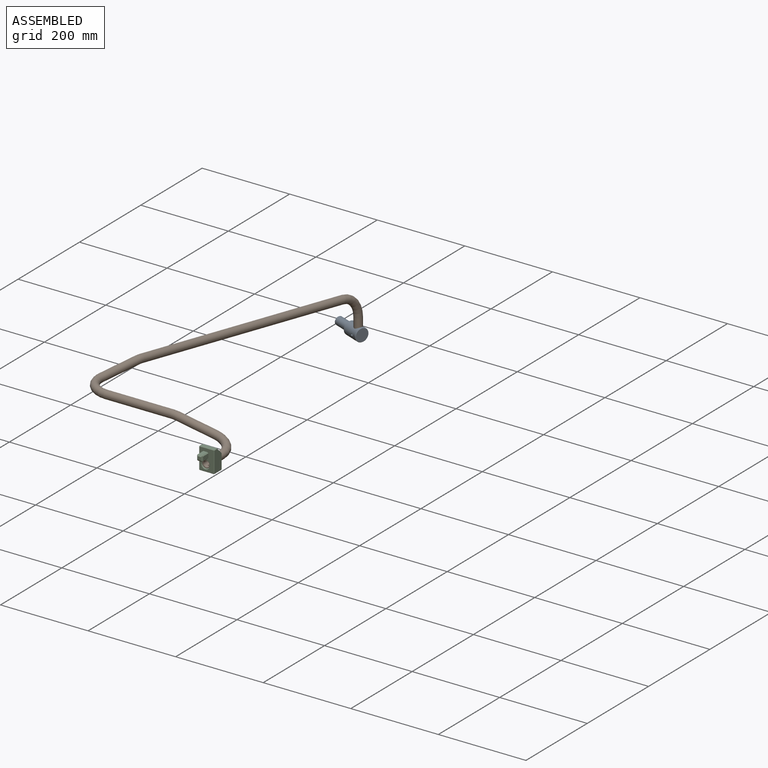
[diagram: assembled view]
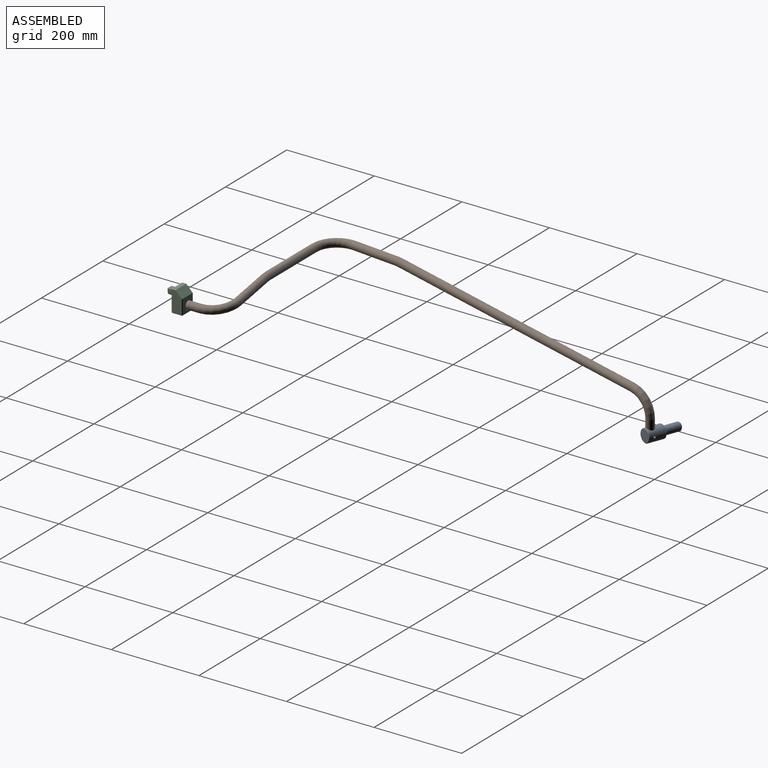
[diagram: assembled view, second angle]
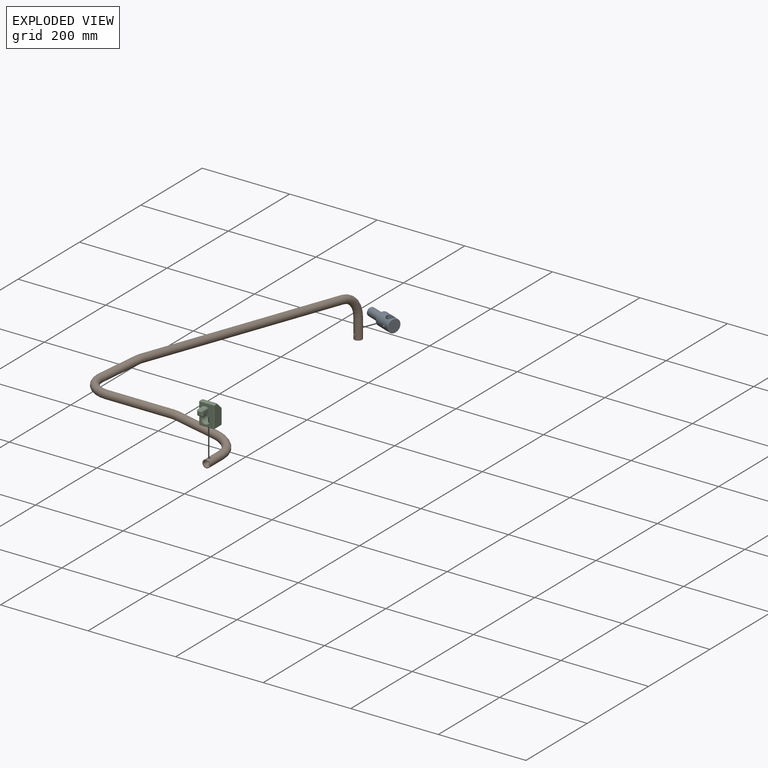
[diagram: exploded view]
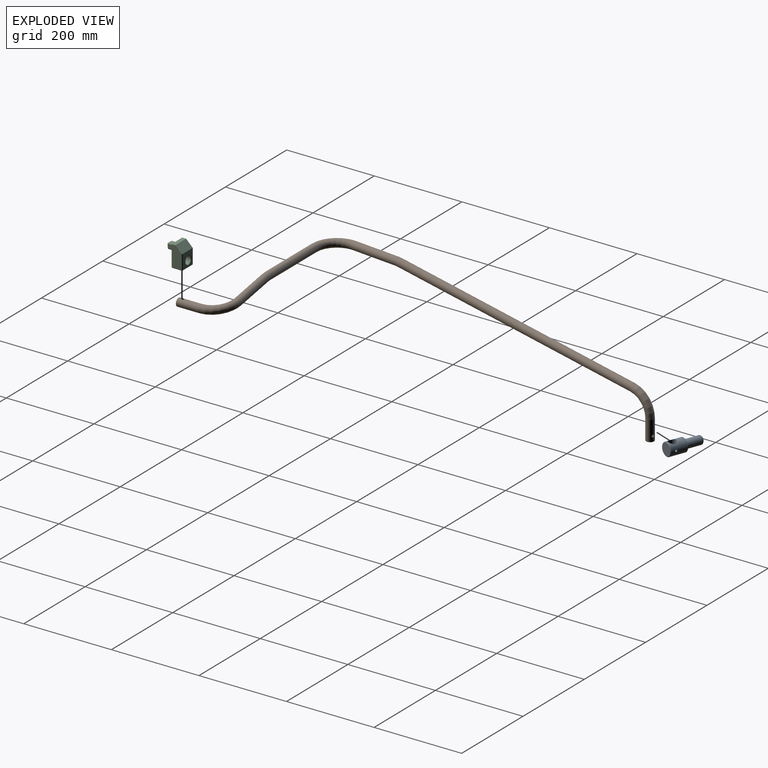
[diagram: exploded view, second angle]
ASSEMBLY  parts=3 mates=2
PART A: 13 faces, bbox 34.5x30x80 mm
  f0: cylinder r=15mm len=38mm, axis (0,0,-1), area 3006.4mm2, adj f1,f8,f9,f11,f12
  f1: cylinder r=9mm len=34.46mm, axis (0.93,-0.36,0), area 1491.9mm2, adj f0,f8,f9
  f2: plane 28x28mm, normal (0,0,-1), area 439mm2, adj f7,f12
  f3: plane 28x28mm, normal (0,0,1), area 615.8mm2, adj f11
  f4: plane 13x13mm, normal (0,0,-1), area 132.7mm2, adj f10
  f5: cylinder r=9.5mm len=34mm, axis (0,0,-1), area 2029.5mm2, adj f6,f10
  f6: plane 19x19mm, normal (0,0,1), area 106.8mm2, adj f5,f7
  f7: cylinder r=7.5mm len=15mm, axis (0,0,-1), area 141.4mm2, adj f2,f6
  f8: cylinder r=2.5mm len=7.72mm, axis (-0.36,-0.93,0), area 95.4mm2, adj f0,f1
  f9: cylinder r=2.5mm len=7.72mm, axis (-0.36,-0.93,0), area 95.4mm2, adj f0,f1
  f10: cone r=6.5mm half-angle=45deg, axis (0,0,1), area 213.3mm2, adj f4,f5
  f11: cone r=15mm half-angle=45deg, axis (0,0,-1), area 128.8mm2, adj f0,f3
  f12: cone r=14mm half-angle=45deg, axis (0,0,1), area 128.8mm2, adj f0,f2
PART B: 28 faces, bbox 377.6x899.4x186.9 mm
  f0: cylinder r=7mm len=50mm, axis (0,-1,0), area 2150.7mm2, adj f4,f23,f26,f27
  f1: cylinder r=9mm len=50mm, axis (0,-1,0), area 2779.4mm2, adj f9,f23,f26,f27
  f2: cylinder r=7mm len=45.67mm, axis (0,0,-1), area 1960mm2, adj f8,f22,f24,f25
  f3: cylinder r=9mm len=45.67mm, axis (0,0,-1), area 2534.2mm2, adj f13,f22,f24,f25
  f4: torus R=51mm, axis (0.17,0,0.98), area 3523.4mm2, adj f0,f14
  f5: torus R=51mm, axis (0,-1,0), area 391.5mm2, adj f14,f15
  f6: torus R=51mm, axis (0,0,-1), area 3758.3mm2, adj f15,f16
  f7: torus R=51mm, axis (-0.99,0.1,0), area 313.2mm2, adj f16,f17
  f8: torus R=51mm, axis (-0.99,0.1,0), area 3210.3mm2, adj f2,f17
  f9: torus R=51mm, axis (0.17,0,0.98), area 4530.1mm2, adj f1,f18
  f10: torus R=51mm, axis (0,-1,0), area 503.3mm2, adj f18,f19
  f11: torus R=51mm, axis (0,0,-1), area 4832.2mm2, adj f19,f20
  f12: torus R=51mm, axis (-0.99,0.1,0), area 402.7mm2, adj f20,f21
  f13: torus R=51mm, axis (-0.99,0.1,0), area 4127.5mm2, adj f3,f21
  f14: cylinder r=7mm len=89.59mm, axis (-0.98,0,0.17), area 3892.8mm2, adj f4,f5
  f15: cylinder r=7mm len=152.71mm, axis (-1,0,0), area 6716.6mm2, adj f5,f6
  f16: cylinder r=7mm len=105.68mm, axis (0.1,0.99,0), area 4609mm2, adj f6,f7
  f17: cylinder r=7mm len=575.71mm, axis (0.1,0.98,-0.14), area 25602.1mm2, adj f7,f8
  f18: cylinder r=9mm len=90.29mm, axis (-0.98,0,0.17), area 5005mm2, adj f9,f10
  f19: cylinder r=9mm len=152.71mm, axis (-1,0,0), area 8635.7mm2, adj f10,f11
  f20: cylinder r=9mm len=106.1mm, axis (0.1,0.99,0), area 5925.9mm2, adj f11,f12
  f21: cylinder r=9mm len=576.4mm, axis (0.1,0.98,-0.14), area 32917mm2, adj f12,f13
  f22: plane 18x18mm, normal (0,0,-1), area 100.5mm2, adj f2,f3
  f23: plane 18x18mm, normal (0,-1,0), area 100.5mm2, adj f0,f1
  f24: cylinder r=2.75mm len=6.05mm, axis (0.36,0.93,0), area 35.7mm2, adj f2,f3
  f25: cylinder r=2.75mm len=6.05mm, axis (0.36,0.93,0), area 35.7mm2, adj f2,f3
  f26: cylinder r=2.75mm len=5.5mm, axis (0,0,-1), area 35.7mm2, adj f0,f1
  f27: cylinder r=2.75mm len=5.5mm, axis (0,0,-1), area 35.7mm2, adj f0,f1
PART C: 44 faces, bbox 50x35x45 mm
  f0: plane 33x9mm, normal (-1,0,0), area 297mm2, adj f12,f26,f27,f31
  f1: plane 48x23mm, normal (0,-1,0), area 1000.1mm2, adj f18,f19,f23,f27,f28
  f2: plane 33x23mm, normal (1,0,0), area 739.4mm2, adj f13,f16,f19,f20,f43
  f3: cylinder r=9mm len=23mm, axis (0,0,-1), area 1261mm2, adj f32,f33,f42,f43
  f4: plane 48x23mm, normal (0,1,0), area 1000.1mm2, adj f16,f17,f22,f25,f26
  f5: plane 34x33mm, normal (0,0,1), area 807.8mm2, adj f12,f13,f17,f18,f32
  f6: plane 48x33mm, normal (0,0,-1), area 1095.6mm2, adj f7,f8,f9,f10,f20,f25,f28,f31
  f7: plane 17x9.5mm, normal (-1,0,0), area 161.5mm2, adj f6,f34,f38,f41
  f8: plane 17x9.5mm, normal (0,-1,0), area 161.5mm2, adj f6,f36,f38,f39
  f9: plane 17x9.5mm, normal (1,0,0), area 161.5mm2, adj f6,f37,f39,f40
  f10: plane 17x9.5mm, normal (0,1,0), area 161.5mm2, adj f6,f35,f40,f41
  f11: plane 7.5x7.5mm, normal (0,0,-1), area 56.2mm2, adj f34,f35,f36,f37
  f12: plane 33x15mm, normal (-0.71,0,0.71), area 616.7mm2, adj f0,f5,f22,f23,f42
  f13: plane 33x1mm, normal (0.71,0,0.71), area 46.7mm2, adj f2,f5,f14,f15
  f14: plane 1x1mm, normal (0.58,0.58,0.58), area 0.9mm2, adj f13,f16,f17
  f15: plane 1x1mm, normal (0.58,-0.58,0.58), area 0.9mm2, adj f13,f18,f19
  f16: plane 23x1mm, normal (0.71,0.71,0), area 32.5mm2, adj f2,f4,f14,f21
  f17: plane 34x1mm, normal (0,0.71,0.71), area 47.8mm2, adj f4,f5,f14,f22
  f18: plane 34x1mm, normal (0,-0.71,0.71), area 47.8mm2, adj f1,f5,f15,f23
  f19: plane 23x1mm, normal (0.71,-0.71,0), area 32.5mm2, adj f1,f2,f15,f24
  f20: plane 33x1mm, normal (0.71,0,-0.71), area 46.7mm2, adj f2,f6,f21,f24
  f21: plane 1x1mm, normal (0.58,0.58,-0.58), area 0.9mm2, adj f16,f20,f25
  f22: plane 15.41x15.41mm, normal (-0.5,0.71,0.5), area 29.4mm2, adj f4,f12,f17,f26
  f23: plane 15.41x15.41mm, normal (-0.5,-0.71,0.5), area 29.4mm2, adj f1,f12,f18,f27
  f24: plane 1x1mm, normal (0.58,-0.58,-0.58), area 0.9mm2, adj f19,f20,f28
  f25: plane 48x1mm, normal (0,0.71,-0.71), area 67.9mm2, adj f4,f6,f21,f29
  f26: plane 9x1mm, normal (-0.71,0.71,0), area 12.4mm2, adj f0,f4,f22,f29
  f27: plane 9x1mm, normal (-0.71,-0.71,0), area 12.4mm2, adj f0,f1,f23,f30
  f28: plane 48x1mm, normal (0,-0.71,-0.71), area 67.9mm2, adj f1,f6,f24,f30
  f29: plane 1x1mm, normal (-0.58,0.58,-0.58), area 0.9mm2, adj f25,f26,f31
  f30: plane 1x1mm, normal (-0.58,-0.58,-0.58), area 0.9mm2, adj f27,f28,f31
  f31: plane 33x1mm, normal (-0.71,0,-0.71), area 46.7mm2, adj f0,f6,f29,f30
  f32: cone r=9mm half-angle=45deg, axis (0,0,1), area 84.4mm2, adj f3,f5
  f33: cone r=10mm half-angle=45deg, axis (0,0,-1), area 84.4mm2, adj f3,f6
  f34: plane 11.5x3mm, normal (-0.71,0,-0.71), area 41.7mm2, adj f7,f11,f35,f36,f38,f41
  f35: plane 11.5x3mm, normal (0,0.71,-0.71), area 41.7mm2, adj f10,f11,f34,f37,f40,f41
  f36: plane 11.5x3mm, normal (0,-0.71,-0.71), area 41.7mm2, adj f8,f11,f34,f37,f38,f39
  f37: plane 11.5x3mm, normal (0.71,0,-0.71), area 41.7mm2, adj f9,f11,f35,f36,f39,f40
  f38: plane 18x2mm, normal (-0.71,-0.71,0), area 49.5mm2, adj f6,f7,f8,f34,f36
  f39: plane 18x2mm, normal (0.71,-0.71,0), area 49.5mm2, adj f6,f8,f9,f36,f37
  f40: plane 18x2mm, normal (0.71,0.71,0), area 49.5mm2, adj f6,f9,f10,f35,f37
  f41: plane 18x2mm, normal (-0.71,0.71,0), area 49.5mm2, adj f6,f7,f10,f34,f35
  f42: cylinder r=2.5mm len=26.36mm, axis (1,0,0), area 1110.2mm2, adj f3,f12
  f43: cylinder r=2.5mm len=6.35mm, axis (1,0,0), area 97mm2, adj f2,f3
PLACE A rot(axis=(0.36,0.93,0),90deg) t=(-462.89,-149.56,-501.13)mm
PLACE B t=(-31.87,-267.93,175.7)mm
PLACE C rot(axis=(-0.58,0.58,0.58),120deg) t=(-31.87,-371.43,175.28)mm
MATE fastened C.f42 <-> B.f26  axis (0,0,-1) through (-31.87,-358.93,166.68)mm
MATE fastened A.f8 <-> B.f24  axis (-0.36,-0.93,0) through (-301.78,525.04,35.02)mm
